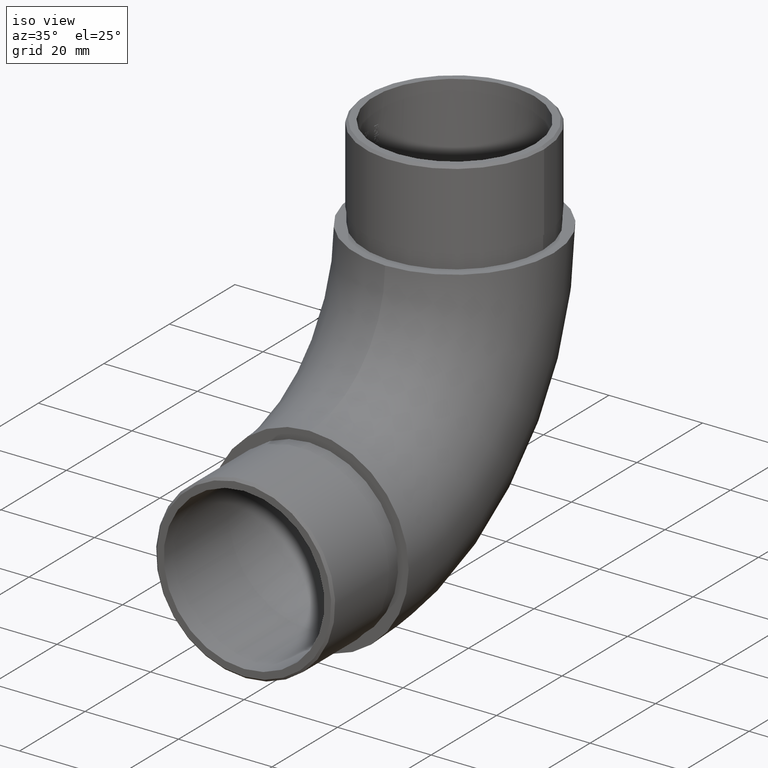
[diagram: clean part render]
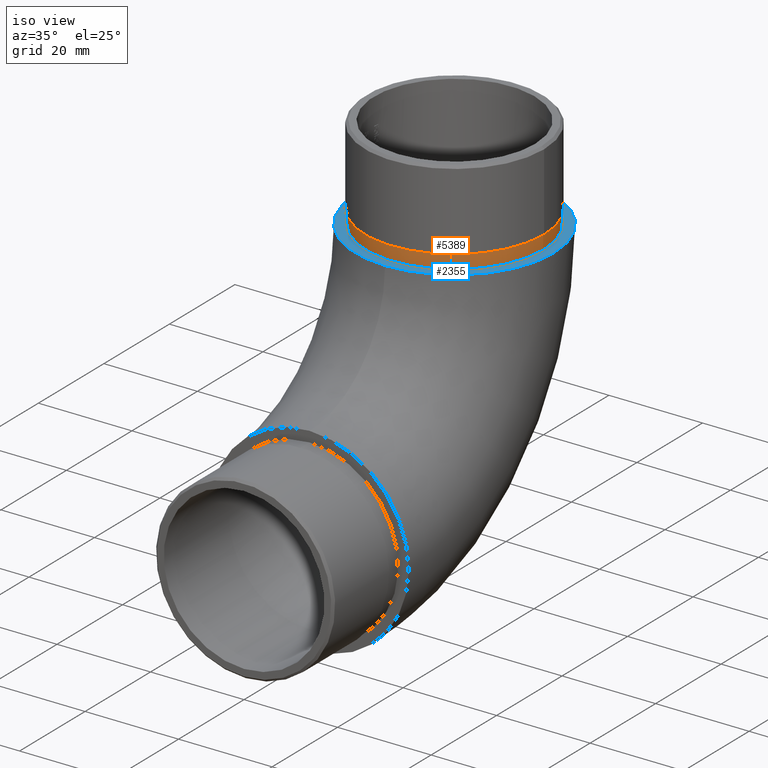
[diagram: same view with the hole feature highlighted: cylindrical wall and planar end face, labeled with their STEP entity ids]
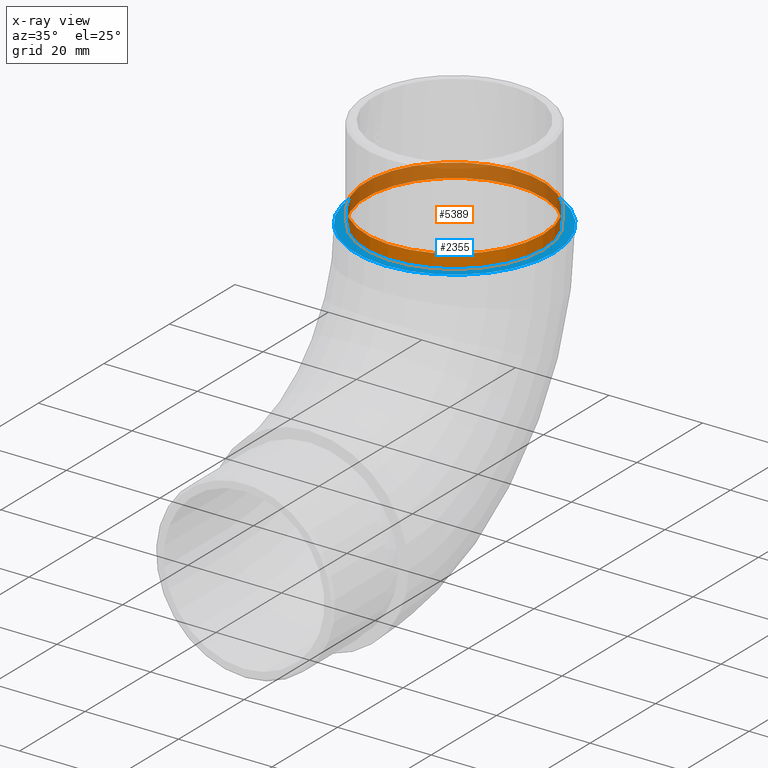
[diagram: x-ray of the same camera — body ghosted, the hole faces saturated]
A machine part, iso view. The highlighted faces form one hole feature of diameter 37.9 mm: the cylindrical wall (entity #5389, orange) and its adjacent planar end face (entity #2355, blue) — they share a circular edge in the B-rep.
The next image is the same camera in x-ray (body ghosted, the hole faces saturated) — the bore reads through the body.
Wall:
#65 = ORIENTED_EDGE ( 'NONE', *, *, #1518, .F. ) ;
#1481 = CIRCLE ( 'NONE', #5158, 18.94999999999999900 ) ;
#1518 = EDGE_CURVE ( 'NONE', #2780, #2780, #1481, .T. ) ;
#2457 = DIRECTION ( 'NONE',  ( 0.0000000000000000000, 0.0000000000000000000, 1.000000000000000000 ) ) ;
#2780 = VERTEX_POINT ( 'NONE', #8488 ) ;
#3180 = CIRCLE ( 'NONE', #8074, 18.94999999999999900 ) ;
#3413 = DIRECTION ( 'NONE',  ( 1.000000000000000000, 0.0000000000000000000, 0.0000000000000000000 ) ) ;
#3473 = FACE_OUTER_BOUND ( 'NONE', #9210, .T. ) ;
#3649 = AXIS2_PLACEMENT_3D ( 'NONE', #6833, #8677, #4939 ) ;
#4054 = CYLINDRICAL_SURFACE ( 'NONE', #3649, 18.94999999999999900 ) ;
#4936 = EDGE_CURVE ( 'NONE', #5667, #5667, #3180, .T. ) ;
#4939 = DIRECTION ( 'NONE',  ( -1.000000000000000000, 0.0000000000000000000, 0.0000000000000000000 ) ) ;
#5158 = AXIS2_PLACEMENT_3D ( 'NONE', #7917, #2457, #3413 ) ;
#5336 = FACE_OUTER_BOUND ( 'NONE', #9897, .T. ) ;
#5389 = ADVANCED_FACE ( 'NONE', ( #5336, #3473 ), #4054, .T. ) ;
#5667 = VERTEX_POINT ( 'NONE', #8406 ) ;
#6470 = DIRECTION ( 'NONE',  ( 1.000000000000000000, 0.0000000000000000000, 0.0000000000000000000 ) ) ;
#6833 = CARTESIAN_POINT ( 'NONE',  ( 0.0000000000000000000, 44.29999999999999000, 68.50000000000000000 ) ) ;
#7917 = CARTESIAN_POINT ( 'NONE',  ( 0.0000000000000000000, 44.29999999999999000, 68.50000000000000000 ) ) ;
#8074 = AXIS2_PLACEMENT_3D ( 'NONE', #10278, #8364, #6470 ) ;
#8364 = DIRECTION ( 'NONE',  ( 0.0000000000000000000, 0.0000000000000000000, 1.000000000000000000 ) ) ;
#8406 = CARTESIAN_POINT ( 'NONE',  ( 18.94999999999999900, 44.29999999999999000, 65.50000000000000000 ) ) ;
#8488 = CARTESIAN_POINT ( 'NONE',  ( 18.94999999999999900, 44.29999999999999000, 68.50000000000000000 ) ) ;
#8677 = DIRECTION ( 'NONE',  ( -0.0000000000000000000, -0.0000000000000000000, -1.000000000000000000 ) ) ;
#9210 = EDGE_LOOP ( 'NONE', ( #10519 ) ) ;
#9897 = EDGE_LOOP ( 'NONE', ( #65 ) ) ;
#10278 = CARTESIAN_POINT ( 'NONE',  ( 0.0000000000000000000, 44.29999999999999000, 65.50000000000000000 ) ) ;
#10519 = ORIENTED_EDGE ( 'NONE', *, *, #4936, .T. ) ;
End face:
#476 = EDGE_LOOP ( 'NONE', ( #5573 ) ) ;
#680 = AXIS2_PLACEMENT_3D ( 'NONE', #6537, #11078, #6460 ) ;
#869 = EDGE_CURVE ( 'NONE', #11484, #11484, #7866, .T. ) ;
#2355 = ADVANCED_FACE ( 'NONE', ( #5364, #7273 ), #5550, .T. ) ;
#3180 = CIRCLE ( 'NONE', #8074, 18.94999999999999900 ) ;
#3688 = AXIS2_PLACEMENT_3D ( 'NONE', #10515, #4896, #5873 ) ;
#4896 = DIRECTION ( 'NONE',  ( 0.0000000000000000000, 6.123233995736766000E-017, 1.000000000000000000 ) ) ;
#4936 = EDGE_CURVE ( 'NONE', #5667, #5667, #3180, .T. ) ;
#5364 = FACE_OUTER_BOUND ( 'NONE', #476, .T. ) ;
#5550 = PLANE ( 'NONE',  #680 ) ;
#5573 = ORIENTED_EDGE ( 'NONE', *, *, #869, .T. ) ;
#5667 = VERTEX_POINT ( 'NONE', #8406 ) ;
#5873 = DIRECTION ( 'NONE',  ( 0.0000000000000000000, -1.000000000000000000, 0.0000000000000000000 ) ) ;
#6460 = DIRECTION ( 'NONE',  ( 0.0000000000000000000, -1.000000000000000000, 6.123233995736766000E-017 ) ) ;
#6470 = DIRECTION ( 'NONE',  ( 1.000000000000000000, 0.0000000000000000000, 0.0000000000000000000 ) ) ;
#6537 = CARTESIAN_POINT ( 'NONE',  ( 0.0000000000000000000, 44.29999999999999000, 65.50000000000000000 ) ) ;
#7247 = EDGE_LOOP ( 'NONE', ( #9407 ) ) ;
#7273 = FACE_BOUND ( 'NONE', #7247, .T. ) ;
#7866 = CIRCLE ( 'NONE', #3688, 21.19999999999999900 ) ;
#8074 = AXIS2_PLACEMENT_3D ( 'NONE', #10278, #8364, #6470 ) ;
#8364 = DIRECTION ( 'NONE',  ( 0.0000000000000000000, 0.0000000000000000000, 1.000000000000000000 ) ) ;
#8406 = CARTESIAN_POINT ( 'NONE',  ( 18.94999999999999900, 44.29999999999999000, 65.50000000000000000 ) ) ;
#9407 = ORIENTED_EDGE ( 'NONE', *, *, #4936, .F. ) ;
#10278 = CARTESIAN_POINT ( 'NONE',  ( 0.0000000000000000000, 44.29999999999999000, 65.50000000000000000 ) ) ;
#10284 = CARTESIAN_POINT ( 'NONE',  ( 0.0000000000000000000, 23.09999999999999100, 65.50000000000000000 ) ) ;
#10515 = CARTESIAN_POINT ( 'NONE',  ( 0.0000000000000000000, 44.29999999999999000, 65.50000000000000000 ) ) ;
#11078 = DIRECTION ( 'NONE',  ( 0.0000000000000000000, 6.123233995736766000E-017, 1.000000000000000000 ) ) ;
#11484 = VERTEX_POINT ( 'NONE', #10284 ) ;